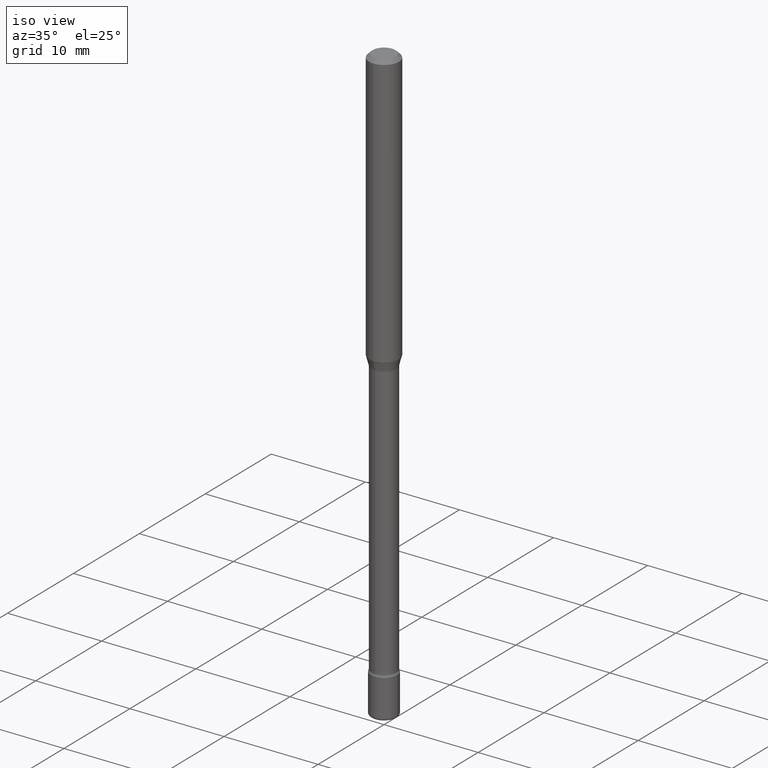
[diagram: clean part render]
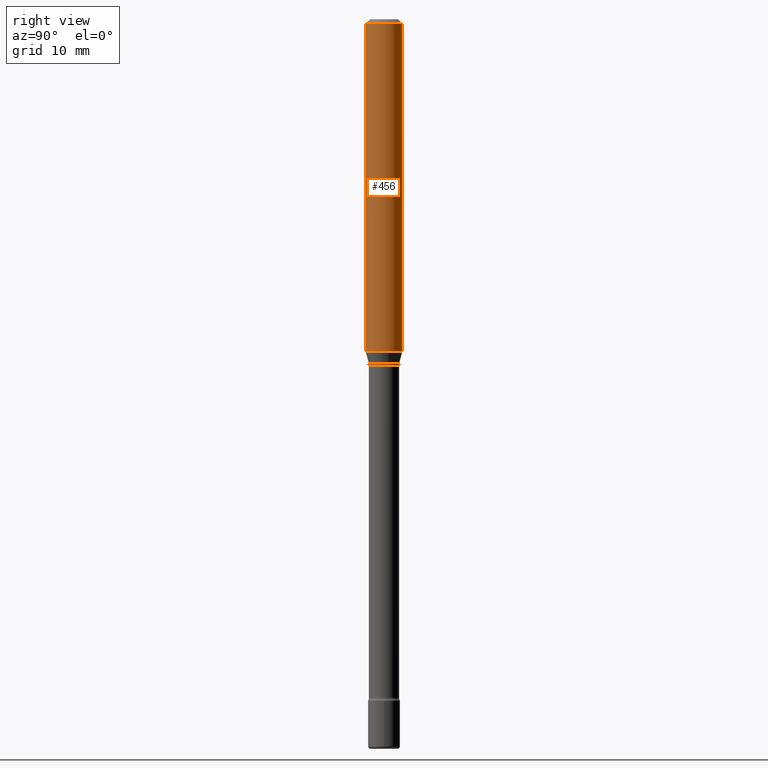
[diagram: tour spotlight — one face highlighted and labeled with its STEP entity id]
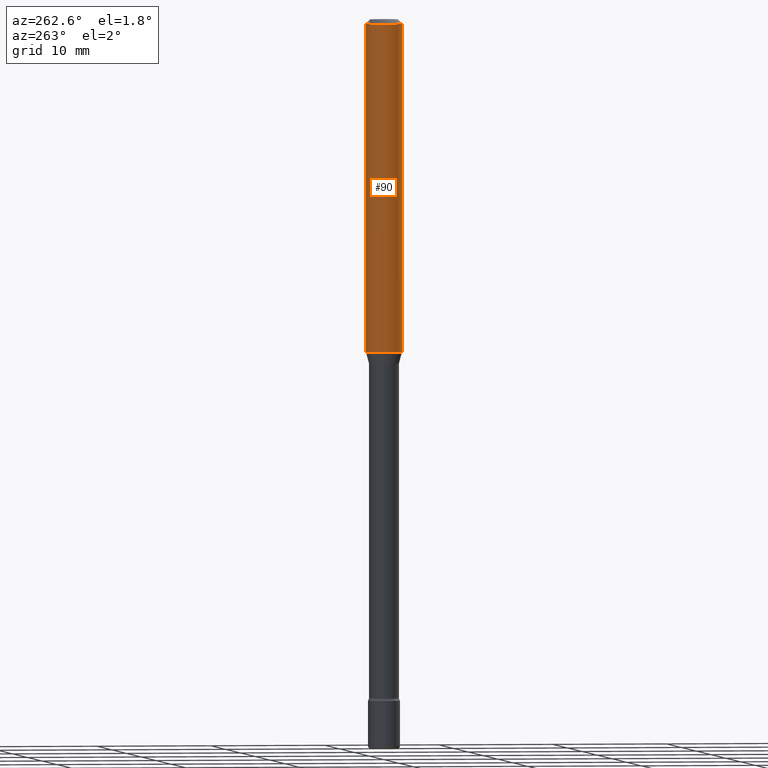
[diagram: tour spotlight — one face highlighted and labeled with its STEP entity id]
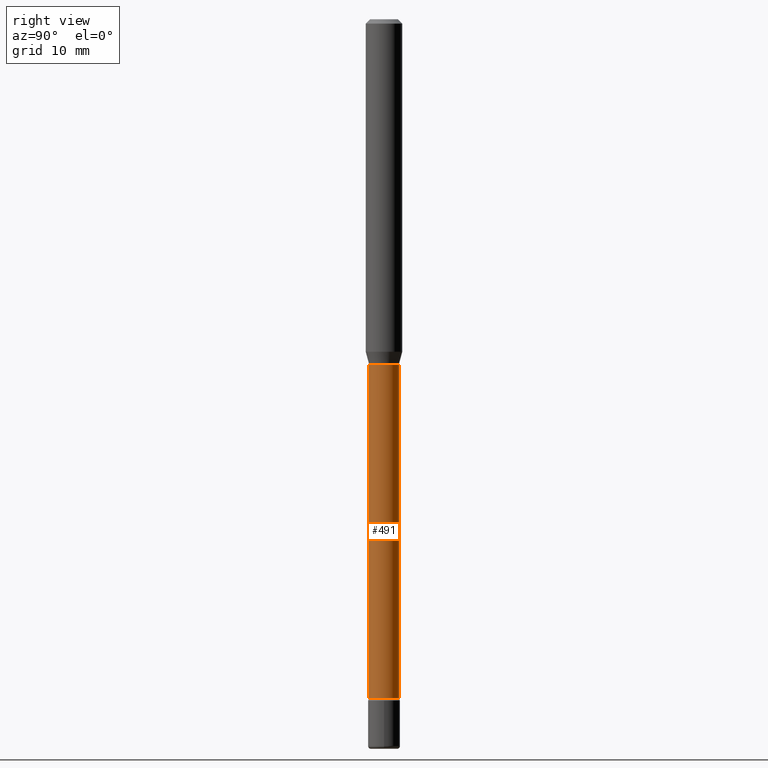
[diagram: tour spotlight — one face highlighted and labeled with its STEP entity id]
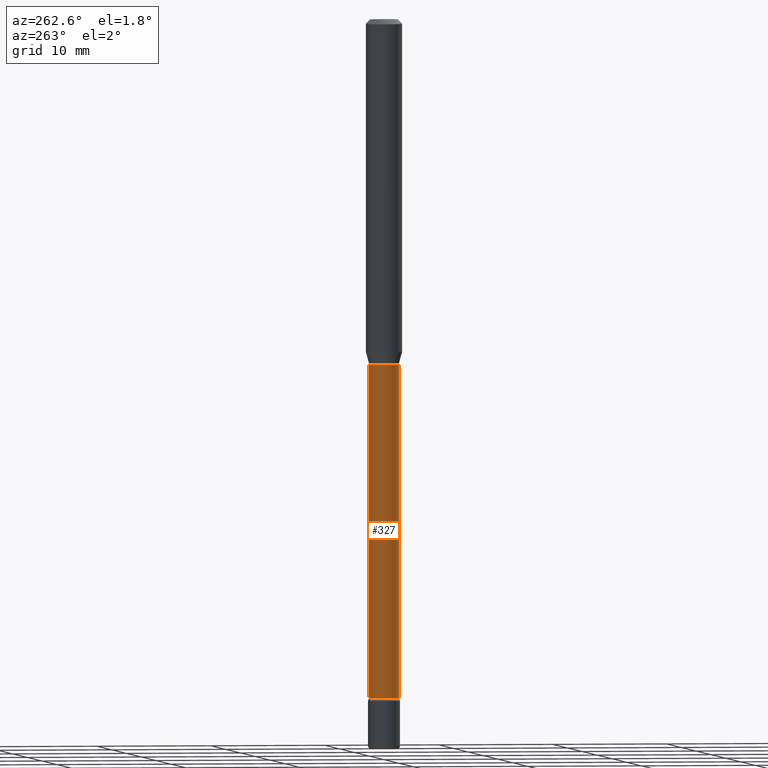
[diagram: tour spotlight — one face highlighted and labeled with its STEP entity id]
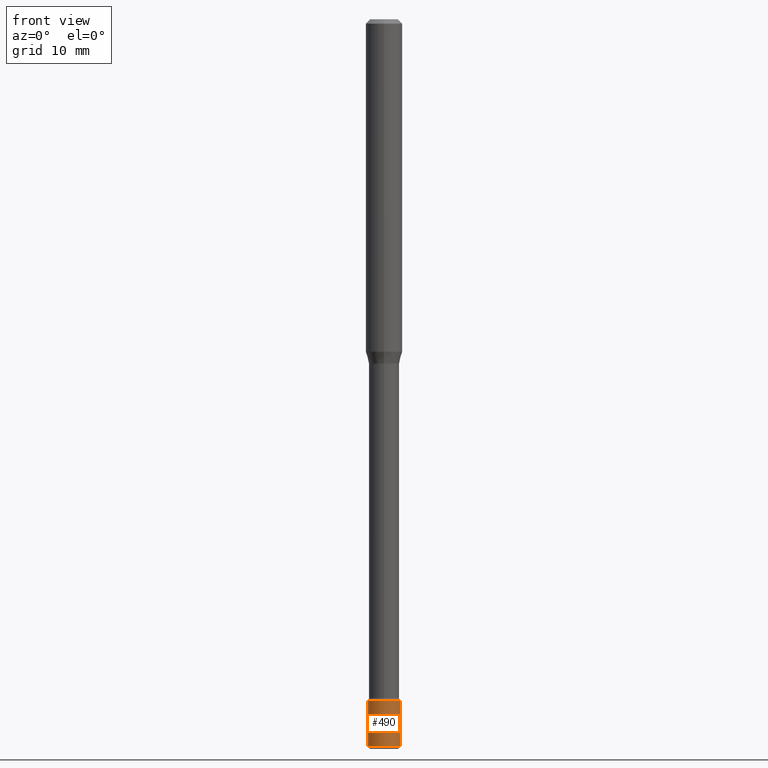
[diagram: tour spotlight — one face highlighted and labeled with its STEP entity id]
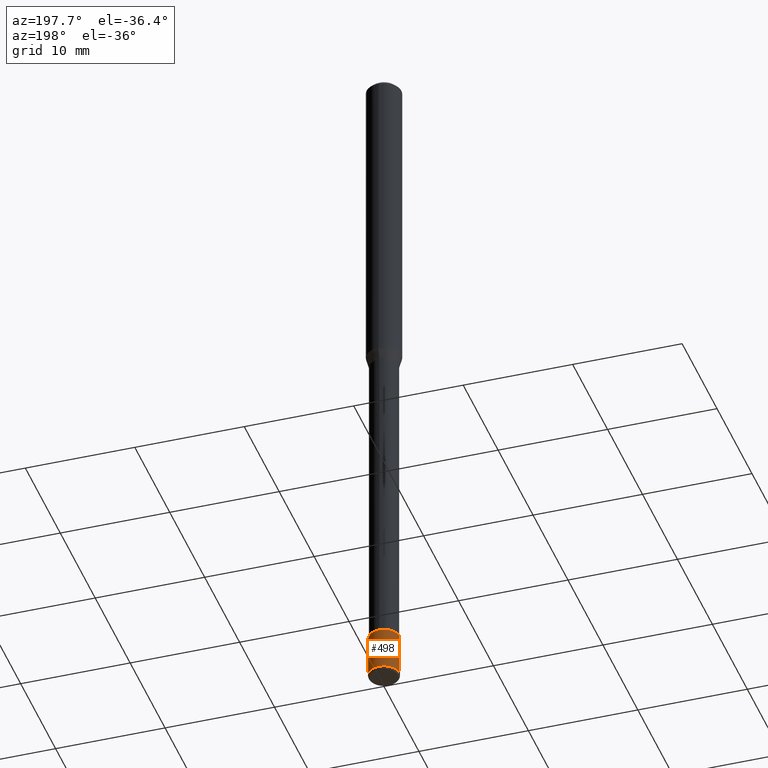
[diagram: tour spotlight — one face highlighted and labeled with its STEP entity id]
A machine part: a face-by-face anatomy tour. The part has 20 B-rep faces; the first image is the clean iso view, then the 6 largest visible faces are spotlighted one at a time (largest first), each with its STEP entity span.

Face 1 — right view, entity #456. In plain terms, the highlighted cylindrical surface (edge-blend (fillet) strip) has radius 1.5875 mm, axis along (-0, 0, 1).
Definition (entity closure, byte-faithful):
#46 = AXIS2_PLACEMENT_3D ( 'NONE', #152, #328, #363 ) ;
#56 = FACE_OUTER_BOUND ( 'NONE', #558, .T. ) ;
#63 = AXIS2_PLACEMENT_3D ( 'NONE', #534, #559, #113 ) ;
#71 = EDGE_CURVE ( 'NONE', #201, #429, #167, .T. ) ;
#92 = ORIENTED_EDGE ( 'NONE', *, *, #542, .T. ) ;
#113 = DIRECTION ( 'NONE',  ( -6.982962677686265922E-15, -1.000000000000000000, 3.483106191921935554E-15 ) ) ;
#118 = CARTESIAN_POINT ( 'NONE',  ( 2.786990575543824291E-29, -3.979356126014852936E-15, -1.139693851278256176 ) ) ;
#121 = DIRECTION ( 'NONE',  ( -6.982962677686265922E-15, -1.000000000000000000, 4.370956789862821150E-15 ) ) ;
#122 = CARTESIAN_POINT ( 'NONE',  ( -4.364351673553912750E-16, -0.06250000000000005551, -0.01499999999999981036 ) ) ;
#135 = VERTEX_POINT ( 'NONE', #122 ) ;
#150 = CIRCLE ( 'NONE', #487, 0.06250000000000000000 ) ;
#152 = CARTESIAN_POINT ( 'NONE',  ( -1.169113584055446105E-44, 1.669184350826100908E-30, 4.780733988912460139E-16 ) ) ;
#157 = CARTESIAN_POINT ( 'NONE',  ( -4.364351673553638128E-16, -0.06250000000000399680, -1.139693851278255954 ) ) ;
#167 = LINE ( 'NONE', #377, #451 ) ;
#195 = CYLINDRICAL_SURFACE ( 'NONE', #46, 0.06250000000000000000 ) ;
#201 = VERTEX_POINT ( 'NONE', #213 ) ;
#203 = ORIENTED_EDGE ( 'NONE', *, *, #71, .T. ) ;
#213 = CARTESIAN_POINT ( 'NONE',  ( 4.440892098500903249E-16, 0.06249999999999600320, -1.139693851278256398 ) ) ;
#253 = ORIENTED_EDGE ( 'NONE', *, *, #520, .F. ) ;
#256 = DIRECTION ( 'NONE',  ( -2.445385286950522456E-29, 3.491600943140732554E-15, 1.000000000000000000 ) ) ;
#284 = DIRECTION ( 'NONE',  ( -2.445385286950522456E-29, 3.491600943140732554E-15, 1.000000000000000000 ) ) ;
#328 = DIRECTION ( 'NONE',  ( -2.445385286950522456E-29, 3.491600943140732554E-15, 1.000000000000000000 ) ) ;
#363 = DIRECTION ( 'NONE',  ( -6.982962677686265922E-15, -1.000000000000000000, 3.491600943140732160E-15 ) ) ;
#366 = LINE ( 'NONE', #414, #461 ) ;
#377 = CARTESIAN_POINT ( 'NONE',  ( 4.440892098500625669E-16, 0.06250000000000000000, 2.598483399449503033E-16 ) ) ;
#386 = DIRECTION ( 'NONE',  ( -2.445385286950522456E-29, 3.491600943140732554E-15, 1.000000000000000000 ) ) ;
#396 = EDGE_CURVE ( 'NONE', #541, #135, #366, .T. ) ;
#414 = CARTESIAN_POINT ( 'NONE',  ( -4.364351673553916201E-16, -0.06250000000000000000, 6.962984578375418232E-16 ) ) ;
#429 = VERTEX_POINT ( 'NONE', #503 ) ;
#442 = CIRCLE ( 'NONE', #63, 0.06250000000000000000 ) ;
#451 = VECTOR ( 'NONE', #386, 39.37007874015748143 ) ;
#456 = ADVANCED_FACE ( 'NONE', ( #56 ), #195, .T. ) ;
#461 = VECTOR ( 'NONE', #284, 39.37007874015748143 ) ;
#487 = AXIS2_PLACEMENT_3D ( 'NONE', #118, #256, #121 ) ;
#503 = CARTESIAN_POINT ( 'NONE',  ( 4.440892098500906207E-16, 0.06249999999999993755, -0.01500000000000024578 ) ) ;
#508 = ORIENTED_EDGE ( 'NONE', *, *, #396, .F. ) ;
#520 = EDGE_CURVE ( 'NONE', #135, #429, #442, .T. ) ;
#534 = CARTESIAN_POINT ( 'NONE',  ( 3.668077930425790463E-31, -5.237401414711108766E-17, -0.01500000000000002720 ) ) ;
#541 = VERTEX_POINT ( 'NONE', #157 ) ;
#542 = EDGE_CURVE ( 'NONE', #541, #201, #150, .T. ) ;
#558 = EDGE_LOOP ( 'NONE', ( #92, #203, #253, #508 ) ) ;
#559 = DIRECTION ( 'NONE',  ( -2.445385286950522456E-29, 3.491600943140732554E-15, 1.000000000000000000 ) ) ;

Face 2 — auxiliary view, entity #90. In plain terms, the highlighted cylindrical surface (edge-blend (fillet) strip) has radius 1.5875 mm, axis along (-0, 0, 1).
Definition (entity closure, byte-faithful):
#35 = EDGE_LOOP ( 'NONE', ( #282, #401, #66, #474 ) ) ;
#36 = CARTESIAN_POINT ( 'NONE',  ( -1.169113584055446105E-44, 1.669184350826100908E-30, 4.780733988912460139E-16 ) ) ;
#66 = ORIENTED_EDGE ( 'NONE', *, *, #396, .T. ) ;
#71 = EDGE_CURVE ( 'NONE', #201, #429, #167, .T. ) ;
#82 = AXIS2_PLACEMENT_3D ( 'NONE', #509, #423, #303 ) ;
#90 = ADVANCED_FACE ( 'NONE', ( #343 ), #345, .T. ) ;
#122 = CARTESIAN_POINT ( 'NONE',  ( -4.364351673553912750E-16, -0.06250000000000005551, -0.01499999999999981036 ) ) ;
#128 = AXIS2_PLACEMENT_3D ( 'NONE', #36, #338, #376 ) ;
#135 = VERTEX_POINT ( 'NONE', #122 ) ;
#157 = CARTESIAN_POINT ( 'NONE',  ( -4.364351673553638128E-16, -0.06250000000000399680, -1.139693851278255954 ) ) ;
#167 = LINE ( 'NONE', #377, #451 ) ;
#180 = DIRECTION ( 'NONE',  ( -6.982962677686265922E-15, -1.000000000000000000, 4.370956789862821150E-15 ) ) ;
#201 = VERTEX_POINT ( 'NONE', #213 ) ;
#213 = CARTESIAN_POINT ( 'NONE',  ( 4.440892098500903249E-16, 0.06249999999999600320, -1.139693851278256398 ) ) ;
#227 = DIRECTION ( 'NONE',  ( -2.445385286950522456E-29, 3.491600943140732554E-15, 1.000000000000000000 ) ) ;
#247 = AXIS2_PLACEMENT_3D ( 'NONE', #358, #227, #180 ) ;
#251 = EDGE_CURVE ( 'NONE', #201, #541, #312, .T. ) ;
#282 = ORIENTED_EDGE ( 'NONE', *, *, #71, .F. ) ;
#284 = DIRECTION ( 'NONE',  ( -2.445385286950522456E-29, 3.491600943140732554E-15, 1.000000000000000000 ) ) ;
#295 = CIRCLE ( 'NONE', #82, 0.06250000000000000000 ) ;
#303 = DIRECTION ( 'NONE',  ( -6.982962677686265922E-15, -1.000000000000000000, 3.483106191921935554E-15 ) ) ;
#312 = CIRCLE ( 'NONE', #247, 0.06250000000000000000 ) ;
#338 = DIRECTION ( 'NONE',  ( -2.445385286950522456E-29, 3.491600943140732554E-15, 1.000000000000000000 ) ) ;
#343 = FACE_OUTER_BOUND ( 'NONE', #35, .T. ) ;
#345 = CYLINDRICAL_SURFACE ( 'NONE', #128, 0.06250000000000000000 ) ;
#358 = CARTESIAN_POINT ( 'NONE',  ( 2.786990575543824291E-29, -3.979356126014852936E-15, -1.139693851278256176 ) ) ;
#366 = LINE ( 'NONE', #414, #461 ) ;
#376 = DIRECTION ( 'NONE',  ( -6.982962677686265922E-15, -1.000000000000000000, 3.491600943140732160E-15 ) ) ;
#377 = CARTESIAN_POINT ( 'NONE',  ( 4.440892098500625669E-16, 0.06250000000000000000, 2.598483399449503033E-16 ) ) ;
#386 = DIRECTION ( 'NONE',  ( -2.445385286950522456E-29, 3.491600943140732554E-15, 1.000000000000000000 ) ) ;
#396 = EDGE_CURVE ( 'NONE', #541, #135, #366, .T. ) ;
#401 = ORIENTED_EDGE ( 'NONE', *, *, #251, .T. ) ;
#414 = CARTESIAN_POINT ( 'NONE',  ( -4.364351673553916201E-16, -0.06250000000000000000, 6.962984578375418232E-16 ) ) ;
#423 = DIRECTION ( 'NONE',  ( -2.445385286950522456E-29, 3.491600943140732554E-15, 1.000000000000000000 ) ) ;
#429 = VERTEX_POINT ( 'NONE', #503 ) ;
#451 = VECTOR ( 'NONE', #386, 39.37007874015748143 ) ;
#461 = VECTOR ( 'NONE', #284, 39.37007874015748143 ) ;
#474 = ORIENTED_EDGE ( 'NONE', *, *, #549, .F. ) ;
#503 = CARTESIAN_POINT ( 'NONE',  ( 4.440892098500906207E-16, 0.06249999999999993755, -0.01500000000000024578 ) ) ;
#509 = CARTESIAN_POINT ( 'NONE',  ( 3.668077930425790463E-31, -5.237401414711108766E-17, -0.01500000000000002720 ) ) ;
#541 = VERTEX_POINT ( 'NONE', #157 ) ;
#549 = EDGE_CURVE ( 'NONE', #429, #135, #295, .T. ) ;

Face 3 — right view, entity #491. In plain terms, the highlighted cylindrical surface (edge-blend (fillet) strip) has radius 1.3132 mm, axis along (-0, 0, 1).
Definition (entity closure, byte-faithful):
#12 = CIRCLE ( 'NONE', #392, 0.05169999999999999596 ) ;
#16 = ORIENTED_EDGE ( 'NONE', *, *, #164, .F. ) ;
#31 = CARTESIAN_POINT ( 'NONE',  ( 3.673505943879716688E-16, 0.05169999999999998902, 2.975576301308702297E-16 ) ) ;
#37 = EDGE_LOOP ( 'NONE', ( #153, #483, #16, #355 ) ) ;
#44 = CIRCLE ( 'NONE', #329, 0.05169999999999998902 ) ;
#54 = CARTESIAN_POINT ( 'NONE',  ( 3.790745495280705543E-16, 0.05169999999999187051, -2.325613307291702903 ) ) ;
#60 = DIRECTION ( 'NONE',  ( -2.445385286950522456E-29, 3.491600943140732554E-15, 1.000000000000000000 ) ) ;
#105 = CYLINDRICAL_SURFACE ( 'NONE', #557, 0.05169999999999998902 ) ;
#116 = CARTESIAN_POINT ( 'NONE',  ( 3.673505943880288119E-16, 0.05169999999999587426, -1.181974787463810905 ) ) ;
#153 = ORIENTED_EDGE ( 'NONE', *, *, #374, .T. ) ;
#154 = DIRECTION ( 'NONE',  ( -6.982962677686266711E-15, -1.000000000000000000, 3.491600943140732948E-15 ) ) ;
#164 = EDGE_CURVE ( 'NONE', #479, #527, #12, .T. ) ;
#165 = DIRECTION ( 'NONE',  ( -2.445385286950522456E-29, 3.491600943140732554E-15, 1.000000000000000000 ) ) ;
#197 = EDGE_CURVE ( 'NONE', #384, #527, #263, .T. ) ;
#199 = CARTESIAN_POINT ( 'NONE',  ( -1.169113584055446105E-44, 1.669184350826100908E-30, 4.780733988912460139E-16 ) ) ;
#211 = CARTESIAN_POINT ( 'NONE',  ( 2.890383754810473239E-29, -4.126984282677208410E-15, -1.181974787463810683 ) ) ;
#230 = DIRECTION ( 'NONE',  ( -2.445385286950522456E-29, 3.491600943140732554E-15, 1.000000000000000000 ) ) ;
#237 = EDGE_CURVE ( 'NONE', #250, #479, #281, .T. ) ;
#241 = VECTOR ( 'NONE', #165, 39.37007874015748143 ) ;
#250 = VERTEX_POINT ( 'NONE', #492 ) ;
#263 = LINE ( 'NONE', #31, #241 ) ;
#281 = LINE ( 'NONE', #565, #486 ) ;
#307 = DIRECTION ( 'NONE',  ( -6.982962677686266711E-15, -1.000000000000000000, 2.642019336232363246E-15 ) ) ;
#317 = DIRECTION ( 'NONE',  ( -6.982962677686266711E-15, -1.000000000000000000, 5.284038672464726492E-15 ) ) ;
#329 = AXIS2_PLACEMENT_3D ( 'NONE', #532, #230, #317 ) ;
#331 = FACE_OUTER_BOUND ( 'NONE', #37, .T. ) ;
#349 = DIRECTION ( 'NONE',  ( -2.445385286950522456E-29, 3.491600943140732554E-15, 1.000000000000000000 ) ) ;
#355 = ORIENTED_EDGE ( 'NONE', *, *, #237, .F. ) ;
#374 = EDGE_CURVE ( 'NONE', #250, #384, #44, .T. ) ;
#384 = VERTEX_POINT ( 'NONE', #54 ) ;
#392 = AXIS2_PLACEMENT_3D ( 'NONE', #211, #550, #307 ) ;
#453 = CARTESIAN_POINT ( 'NONE',  ( -3.610191704363511115E-16, -0.05170000000000412460, -1.181974787463810683 ) ) ;
#479 = VERTEX_POINT ( 'NONE', #453 ) ;
#483 = ORIENTED_EDGE ( 'NONE', *, *, #197, .T. ) ;
#486 = VECTOR ( 'NONE', #349, 39.37007874015748143 ) ;
#491 = ADVANCED_FACE ( 'NONE', ( #331 ), #105, .T. ) ;
#492 = CARTESIAN_POINT ( 'NONE',  ( -3.610191704363230083E-16, -0.05170000000000810753, -2.325613307291702458 ) ) ;
#527 = VERTEX_POINT ( 'NONE', #116 ) ;
#532 = CARTESIAN_POINT ( 'NONE',  ( 5.687020564787474071E-29, -8.120113617120347933E-15, -2.325613307291702903 ) ) ;
#550 = DIRECTION ( 'NONE',  ( -2.445385286950522456E-29, 3.491600943140732554E-15, 1.000000000000000000 ) ) ;
#557 = AXIS2_PLACEMENT_3D ( 'NONE', #199, #60, #154 ) ;
#565 = CARTESIAN_POINT ( 'NONE',  ( -3.610191704363799049E-16, -0.05169999999999998902, 6.585891676516218968E-16 ) ) ;

Face 4 — auxiliary view, entity #327. In plain terms, the highlighted cylindrical surface (edge-blend (fillet) strip) has radius 1.3132 mm, axis along (-0, 0, 1).
Definition (entity closure, byte-faithful):
#1 = EDGE_LOOP ( 'NONE', ( #112, #293, #485, #316 ) ) ;
#31 = CARTESIAN_POINT ( 'NONE',  ( 3.673505943879716688E-16, 0.05169999999999998902, 2.975576301308702297E-16 ) ) ;
#34 = AXIS2_PLACEMENT_3D ( 'NONE', #339, #208, #510 ) ;
#41 = FACE_OUTER_BOUND ( 'NONE', #1, .T. ) ;
#54 = CARTESIAN_POINT ( 'NONE',  ( 3.790745495280705543E-16, 0.05169999999999187051, -2.325613307291702903 ) ) ;
#112 = ORIENTED_EDGE ( 'NONE', *, *, #197, .F. ) ;
#116 = CARTESIAN_POINT ( 'NONE',  ( 3.673505943880288119E-16, 0.05169999999999587426, -1.181974787463810905 ) ) ;
#139 = AXIS2_PLACEMENT_3D ( 'NONE', #482, #438, #393 ) ;
#165 = DIRECTION ( 'NONE',  ( -2.445385286950522456E-29, 3.491600943140732554E-15, 1.000000000000000000 ) ) ;
#170 = CIRCLE ( 'NONE', #470, 0.05169999999999999596 ) ;
#188 = DIRECTION ( 'NONE',  ( -6.982962677686266711E-15, -1.000000000000000000, 2.642019336232363246E-15 ) ) ;
#197 = EDGE_CURVE ( 'NONE', #384, #527, #263, .T. ) ;
#208 = DIRECTION ( 'NONE',  ( -2.445385286950522456E-29, 3.491600943140732554E-15, 1.000000000000000000 ) ) ;
#224 = EDGE_CURVE ( 'NONE', #527, #479, #170, .T. ) ;
#237 = EDGE_CURVE ( 'NONE', #250, #479, #281, .T. ) ;
#241 = VECTOR ( 'NONE', #165, 39.37007874015748143 ) ;
#250 = VERTEX_POINT ( 'NONE', #492 ) ;
#263 = LINE ( 'NONE', #31, #241 ) ;
#281 = LINE ( 'NONE', #565, #486 ) ;
#293 = ORIENTED_EDGE ( 'NONE', *, *, #564, .T. ) ;
#316 = ORIENTED_EDGE ( 'NONE', *, *, #224, .F. ) ;
#327 = ADVANCED_FACE ( 'NONE', ( #41 ), #353, .T. ) ;
#339 = CARTESIAN_POINT ( 'NONE',  ( 5.687020564787474071E-29, -8.120113617120347933E-15, -2.325613307291702903 ) ) ;
#349 = DIRECTION ( 'NONE',  ( -2.445385286950522456E-29, 3.491600943140732554E-15, 1.000000000000000000 ) ) ;
#353 = CYLINDRICAL_SURFACE ( 'NONE', #139, 0.05169999999999998902 ) ;
#384 = VERTEX_POINT ( 'NONE', #54 ) ;
#390 = DIRECTION ( 'NONE',  ( -2.445385286950522456E-29, 3.491600943140732554E-15, 1.000000000000000000 ) ) ;
#393 = DIRECTION ( 'NONE',  ( -6.982962677686266711E-15, -1.000000000000000000, 3.491600943140732948E-15 ) ) ;
#438 = DIRECTION ( 'NONE',  ( -2.445385286950522456E-29, 3.491600943140732554E-15, 1.000000000000000000 ) ) ;
#453 = CARTESIAN_POINT ( 'NONE',  ( -3.610191704363511115E-16, -0.05170000000000412460, -1.181974787463810683 ) ) ;
#470 = AXIS2_PLACEMENT_3D ( 'NONE', #519, #390, #188 ) ;
#471 = CIRCLE ( 'NONE', #34, 0.05169999999999998902 ) ;
#479 = VERTEX_POINT ( 'NONE', #453 ) ;
#482 = CARTESIAN_POINT ( 'NONE',  ( -1.169113584055446105E-44, 1.669184350826100908E-30, 4.780733988912460139E-16 ) ) ;
#485 = ORIENTED_EDGE ( 'NONE', *, *, #237, .T. ) ;
#486 = VECTOR ( 'NONE', #349, 39.37007874015748143 ) ;
#492 = CARTESIAN_POINT ( 'NONE',  ( -3.610191704363230083E-16, -0.05170000000000810753, -2.325613307291702458 ) ) ;
#510 = DIRECTION ( 'NONE',  ( -6.982962677686266711E-15, -1.000000000000000000, 5.284038672464726492E-15 ) ) ;
#519 = CARTESIAN_POINT ( 'NONE',  ( 2.890383754810473239E-29, -4.126984282677208410E-15, -1.181974787463810683 ) ) ;
#527 = VERTEX_POINT ( 'NONE', #116 ) ;
#564 = EDGE_CURVE ( 'NONE', #384, #250, #471, .T. ) ;
#565 = CARTESIAN_POINT ( 'NONE',  ( -3.610191704363799049E-16, -0.05169999999999998902, 6.585891676516218968E-16 ) ) ;

Face 5 — front view, entity #490. In plain terms, the highlighted cylindrical surface (edge-blend (fillet) strip) has radius 1.397 mm, axis along (-0, 0, 1).
Definition (entity closure, byte-faithful):
#9 = CYLINDRICAL_SURFACE ( 'NONE', #74, 0.05500000000000001416 ) ;
#17 = DIRECTION ( 'NONE',  ( -2.445468806185136597E-29, 3.491481338843145583E-15, 1.000000000000000000 ) ) ;
#21 = CARTESIAN_POINT ( 'NONE',  ( 0.05500000000000000028, -8.536671873471490084E-15, -2.334999999999999964 ) ) ;
#59 = AXIS2_PLACEMENT_3D ( 'NONE', #552, #215, #171 ) ;
#62 = EDGE_CURVE ( 'NONE', #269, #129, #320, .T. ) ;
#74 = AXIS2_PLACEMENT_3D ( 'NONE', #151, #17, #292 ) ;
#76 = EDGE_CURVE ( 'NONE', #314, #129, #340, .T. ) ;
#102 = VECTOR ( 'NONE', #368, 39.37007874015748143 ) ;
#129 = VERTEX_POINT ( 'NONE', #21 ) ;
#131 = CARTESIAN_POINT ( 'NONE',  ( -0.05500000000000000028, -8.032400225291033747E-15, -2.334999999999999964 ) ) ;
#151 = CARTESIAN_POINT ( 'NONE',  ( 0.000000000000000000, 0.000000000000000000, 0.000000000000000000 ) ) ;
#171 = DIRECTION ( 'NONE',  ( 1.000000000000000000, -6.982962677686262766E-15, 0.000000000000000000 ) ) ;
#215 = DIRECTION ( 'NONE',  ( -2.445468806185136597E-29, 3.491481338843145583E-15, 1.000000000000000000 ) ) ;
#219 = DIRECTION ( 'NONE',  ( -2.445468806185136877E-29, 3.491481338843145188E-15, 1.000000000000000000 ) ) ;
#243 = FACE_OUTER_BOUND ( 'NONE', #351, .T. ) ;
#259 = CARTESIAN_POINT ( 'NONE',  ( 0.05500000000000001416, -3.840629472727447381E-16, 2.681897226687765177E-30 ) ) ;
#269 = VERTEX_POINT ( 'NONE', #131 ) ;
#272 = ORIENTED_EDGE ( 'NONE', *, *, #465, .T. ) ;
#277 = AXIS2_PLACEMENT_3D ( 'NONE', #543, #494, #500 ) ;
#292 = DIRECTION ( 'NONE',  ( 1.000000000000000000, -6.982962677686265922E-15, 4.876176775795935232E-29 ) ) ;
#314 = VERTEX_POINT ( 'NONE', #403 ) ;
#320 = CIRCLE ( 'NONE', #59, 0.05500000000000000028 ) ;
#334 = CARTESIAN_POINT ( 'NONE',  ( -0.05500000000000004191, -8.302990029051375478E-15, -2.489999999999999769 ) ) ;
#340 = LINE ( 'NONE', #259, #372 ) ;
#351 = EDGE_LOOP ( 'NONE', ( #388, #272, #515, #417 ) ) ;
#368 = DIRECTION ( 'NONE',  ( -2.445468806185136877E-29, 3.491481338843145188E-15, 1.000000000000000000 ) ) ;
#372 = VECTOR ( 'NONE', #219, 39.37007874015748143 ) ;
#388 = ORIENTED_EDGE ( 'NONE', *, *, #457, .F. ) ;
#403 = CARTESIAN_POINT ( 'NONE',  ( 0.05500000000000004191, -9.077851480992175123E-15, -2.489999999999999769 ) ) ;
#408 = LINE ( 'NONE', #535, #102 ) ;
#417 = ORIENTED_EDGE ( 'NONE', *, *, #62, .F. ) ;
#457 = EDGE_CURVE ( 'NONE', #493, #269, #408, .T. ) ;
#465 = EDGE_CURVE ( 'NONE', #493, #314, #548, .T. ) ;
#490 = ADVANCED_FACE ( 'NONE', ( #243 ), #9, .T. ) ;
#493 = VERTEX_POINT ( 'NONE', #334 ) ;
#494 = DIRECTION ( 'NONE',  ( -2.445468806185136597E-29, 3.491481338843145583E-15, 1.000000000000000000 ) ) ;
#500 = DIRECTION ( 'NONE',  ( 1.000000000000000000, -6.982962677686260400E-15, 0.000000000000000000 ) ) ;
#515 = ORIENTED_EDGE ( 'NONE', *, *, #76, .T. ) ;
#535 = CARTESIAN_POINT ( 'NONE',  ( -0.05500000000000001416, 3.907985046680552028E-16, -2.705414299640198712E-30 ) ) ;
#543 = CARTESIAN_POINT ( 'NONE',  ( 6.089217327400989947E-29, -8.693788533719431716E-15, -2.489999999999999769 ) ) ;
#548 = CIRCLE ( 'NONE', #277, 0.05500000000000001416 ) ;
#552 = CARTESIAN_POINT ( 'NONE',  ( 5.710169662442294357E-29, -8.152608926198745099E-15, -2.334999999999999964 ) ) ;

Face 6 — auxiliary view, entity #498. In plain terms, the highlighted cylindrical surface (edge-blend (fillet) strip) has radius 1.397 mm, axis along (-0, 0, 1).
Definition (entity closure, byte-faithful):
#21 = CARTESIAN_POINT ( 'NONE',  ( 0.05500000000000000028, -8.536671873471490084E-15, -2.334999999999999964 ) ) ;
#28 = DIRECTION ( 'NONE',  ( 1.000000000000000000, -6.982962677686260400E-15, 0.000000000000000000 ) ) ;
#29 = ORIENTED_EDGE ( 'NONE', *, *, #76, .F. ) ;
#65 = CARTESIAN_POINT ( 'NONE',  ( 0.000000000000000000, 0.000000000000000000, 0.000000000000000000 ) ) ;
#75 = CARTESIAN_POINT ( 'NONE',  ( 6.089217327400989947E-29, -8.693788533719431716E-15, -2.489999999999999769 ) ) ;
#76 = EDGE_CURVE ( 'NONE', #314, #129, #340, .T. ) ;
#102 = VECTOR ( 'NONE', #368, 39.37007874015748143 ) ;
#115 = EDGE_CURVE ( 'NONE', #314, #493, #276, .T. ) ;
#129 = VERTEX_POINT ( 'NONE', #21 ) ;
#131 = CARTESIAN_POINT ( 'NONE',  ( -0.05500000000000000028, -8.032400225291033747E-15, -2.334999999999999964 ) ) ;
#210 = CIRCLE ( 'NONE', #497, 0.05500000000000000028 ) ;
#219 = DIRECTION ( 'NONE',  ( -2.445468806185136877E-29, 3.491481338843145188E-15, 1.000000000000000000 ) ) ;
#221 = ORIENTED_EDGE ( 'NONE', *, *, #115, .T. ) ;
#242 = CARTESIAN_POINT ( 'NONE',  ( 5.710169662442294357E-29, -8.152608926198745099E-15, -2.334999999999999964 ) ) ;
#252 = DIRECTION ( 'NONE',  ( -2.445468806185136597E-29, 3.491481338843145583E-15, 1.000000000000000000 ) ) ;
#259 = CARTESIAN_POINT ( 'NONE',  ( 0.05500000000000001416, -3.840629472727447381E-16, 2.681897226687765177E-30 ) ) ;
#269 = VERTEX_POINT ( 'NONE', #131 ) ;
#276 = CIRCLE ( 'NONE', #512, 0.05500000000000001416 ) ;
#296 = FACE_OUTER_BOUND ( 'NONE', #433, .T. ) ;
#314 = VERTEX_POINT ( 'NONE', #403 ) ;
#332 = DIRECTION ( 'NONE',  ( 1.000000000000000000, -6.982962677686262766E-15, 0.000000000000000000 ) ) ;
#334 = CARTESIAN_POINT ( 'NONE',  ( -0.05500000000000004191, -8.302990029051375478E-15, -2.489999999999999769 ) ) ;
#340 = LINE ( 'NONE', #259, #372 ) ;
#350 = AXIS2_PLACEMENT_3D ( 'NONE', #65, #252, #416 ) ;
#368 = DIRECTION ( 'NONE',  ( -2.445468806185136877E-29, 3.491481338843145188E-15, 1.000000000000000000 ) ) ;
#372 = VECTOR ( 'NONE', #219, 39.37007874015748143 ) ;
#403 = CARTESIAN_POINT ( 'NONE',  ( 0.05500000000000004191, -9.077851480992175123E-15, -2.489999999999999769 ) ) ;
#408 = LINE ( 'NONE', #535, #102 ) ;
#416 = DIRECTION ( 'NONE',  ( 1.000000000000000000, -6.982962677686265922E-15, 4.876176775795935232E-29 ) ) ;
#419 = EDGE_CURVE ( 'NONE', #129, #269, #210, .T. ) ;
#433 = EDGE_LOOP ( 'NONE', ( #221, #455, #525, #29 ) ) ;
#455 = ORIENTED_EDGE ( 'NONE', *, *, #457, .T. ) ;
#457 = EDGE_CURVE ( 'NONE', #493, #269, #408, .T. ) ;
#463 = CYLINDRICAL_SURFACE ( 'NONE', #350, 0.05500000000000001416 ) ;
#493 = VERTEX_POINT ( 'NONE', #334 ) ;
#497 = AXIS2_PLACEMENT_3D ( 'NONE', #242, #540, #332 ) ;
#498 = ADVANCED_FACE ( 'NONE', ( #296 ), #463, .T. ) ;
#512 = AXIS2_PLACEMENT_3D ( 'NONE', #75, #560, #28 ) ;
#525 = ORIENTED_EDGE ( 'NONE', *, *, #419, .F. ) ;
#535 = CARTESIAN_POINT ( 'NONE',  ( -0.05500000000000001416, 3.907985046680552028E-16, -2.705414299640198712E-30 ) ) ;
#540 = DIRECTION ( 'NONE',  ( -2.445468806185136597E-29, 3.491481338843145583E-15, 1.000000000000000000 ) ) ;
#560 = DIRECTION ( 'NONE',  ( -2.445468806185136597E-29, 3.491481338843145583E-15, 1.000000000000000000 ) ) ;